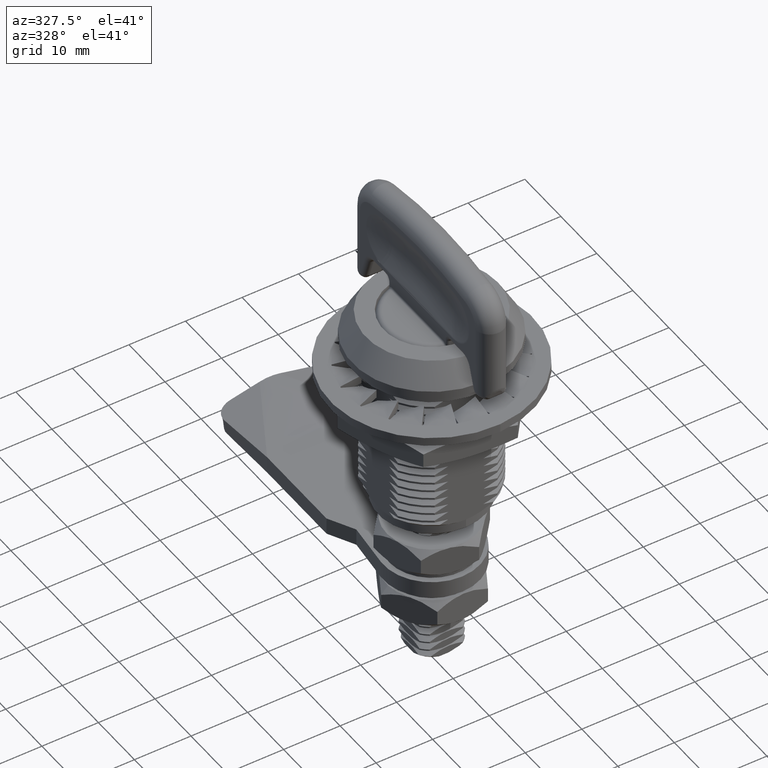
[diagram: clean part render]
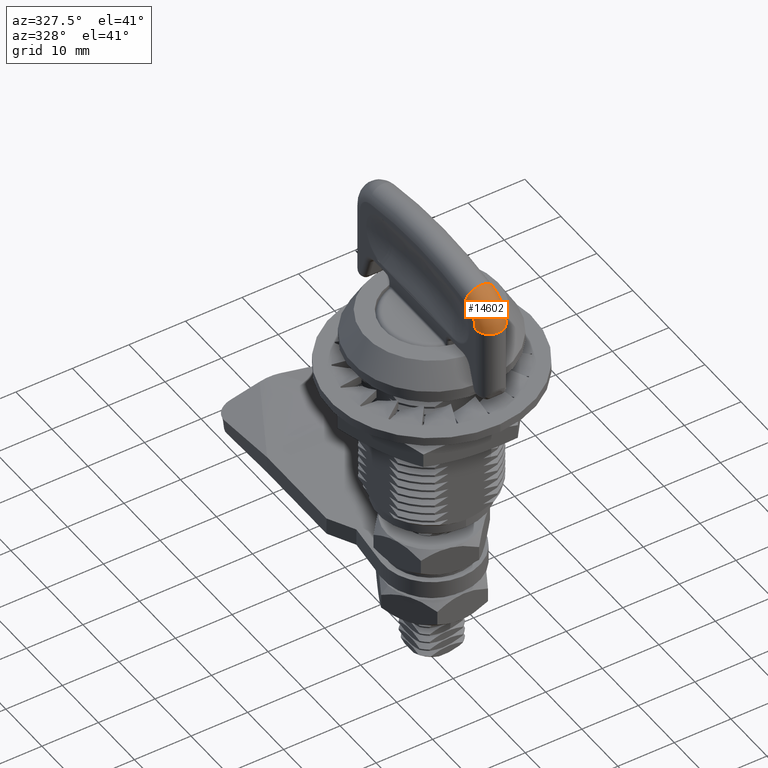
[diagram: same view with one face highlighted and labeled with its STEP entity id]
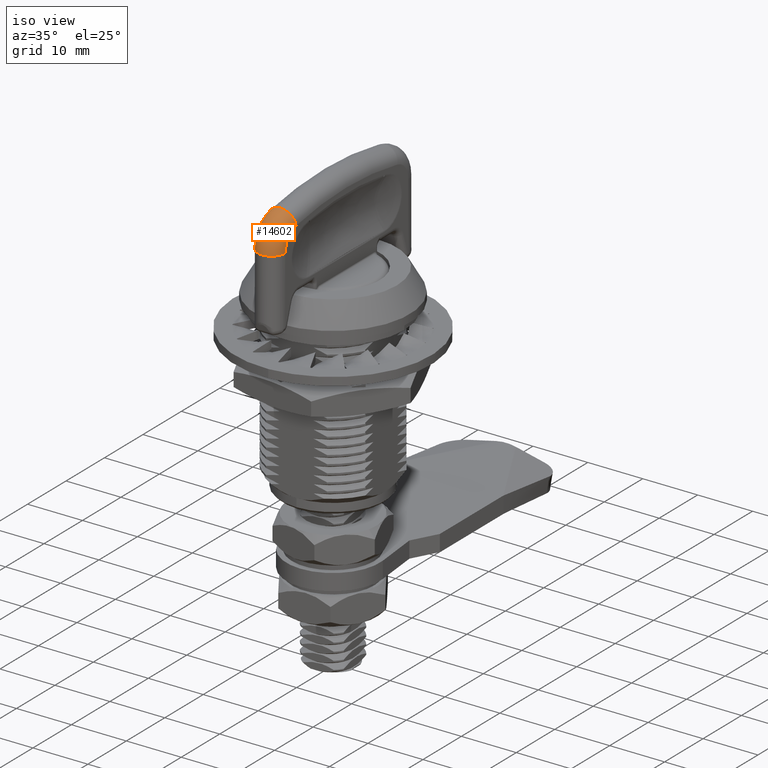
[diagram: same view with one face highlighted and labeled with its STEP entity id]
A machine part, auxiliary view. The second image highlights one B-rep face of the part: STEP entity #14602.
A second angle (iso view) of the same face is appended — the face is thin or edge-on in the first view.
In plain terms, the highlighted toroidal blend (fillet) surface has major radius 3.5 mm and minor (blend) radius 2.5 mm.
Its self-contained STEP definition (entity closure, byte-faithful):
#74=TOROIDAL_SURFACE('',#15432,3.5,2.5);
#3905=FACE_OUTER_BOUND('',#4801,.T.);
#4801=EDGE_LOOP('',(#11576,#11577,#11578,#11579));
#5322=CIRCLE('',#15226,3.5);
#5384=CIRCLE('',#15335,3.5);
#5429=CIRCLE('',#15403,2.5);
#5446=CIRCLE('',#15433,2.5);
#6103=VERTEX_POINT('',#60513);
#6104=VERTEX_POINT('',#60515);
#6229=VERTEX_POINT('',#64641);
#6230=VERTEX_POINT('',#64643);
#7861=EDGE_CURVE('',#6104,#6103,#5322,.T.);
#8050=EDGE_CURVE('',#6230,#6229,#5384,.T.);
#8142=EDGE_CURVE('',#6104,#6229,#5429,.T.);
#8168=EDGE_CURVE('',#6230,#6103,#5446,.T.);
#11576=ORIENTED_EDGE('',*,*,#8050,.T.);
#11577=ORIENTED_EDGE('',*,*,#8142,.F.);
#11578=ORIENTED_EDGE('',*,*,#7861,.T.);
#11579=ORIENTED_EDGE('',*,*,#8168,.F.);
#14602=ADVANCED_FACE('',(#3905),#74,.T.);
#15226=AXIS2_PLACEMENT_3D('',#60516,#16497,#16498);
#15335=AXIS2_PLACEMENT_3D('',#64644,#16748,#16749);
#15403=AXIS2_PLACEMENT_3D('',#67285,#16897,#16898);
#15432=AXIS2_PLACEMENT_3D('',#67631,#16961,#16962);
#15433=AXIS2_PLACEMENT_3D('',#67632,#16963,#16964);
#16497=DIRECTION('center_axis',(-1.,0.,0.));
#16498=DIRECTION('ref_axis',(0.,2.869916621811E-9,1.));
#16748=DIRECTION('center_axis',(1.,0.,0.));
#16749=DIRECTION('ref_axis',(0.,0.980741060294978,0.195312499987796));
#16897=DIRECTION('center_axis',(0.,-1.,0.));
#16898=DIRECTION('ref_axis',(1.,0.,0.));
#16961=DIRECTION('center_axis',(1.,0.,0.));
#16962=DIRECTION('ref_axis',(0.,0.984079489334615,0.177728890929202));
#16963=DIRECTION('center_axis',(0.,0.195312499999798,-0.980741060292588));
#16964=DIRECTION('ref_axis',(0.,0.980741060292588,0.195312499999798));
#60513=CARTESIAN_POINT('',(2.5,49.90002156975,13.18359374996));
#60515=CARTESIAN_POINT('',(2.5,46.4674278597126,15.9999999998289));
#60516=CARTESIAN_POINT('Origin',(2.5,46.46742785872,12.5));
#64641=CARTESIAN_POINT('',(-2.49999999999996,46.4674278564934,16.0000000095133));
#64643=CARTESIAN_POINT('',(-2.5,49.90002156976,13.18359374996));
#64644=CARTESIAN_POINT('Origin',(-2.5,46.46742785872,12.5));
#67285=CARTESIAN_POINT('Origin',(0.,46.46742785872,16.));
#67631=CARTESIAN_POINT('Origin',(0.,46.46742785872,12.5));
#67632=CARTESIAN_POINT('Origin',(0.,49.90002156974,13.18359375));